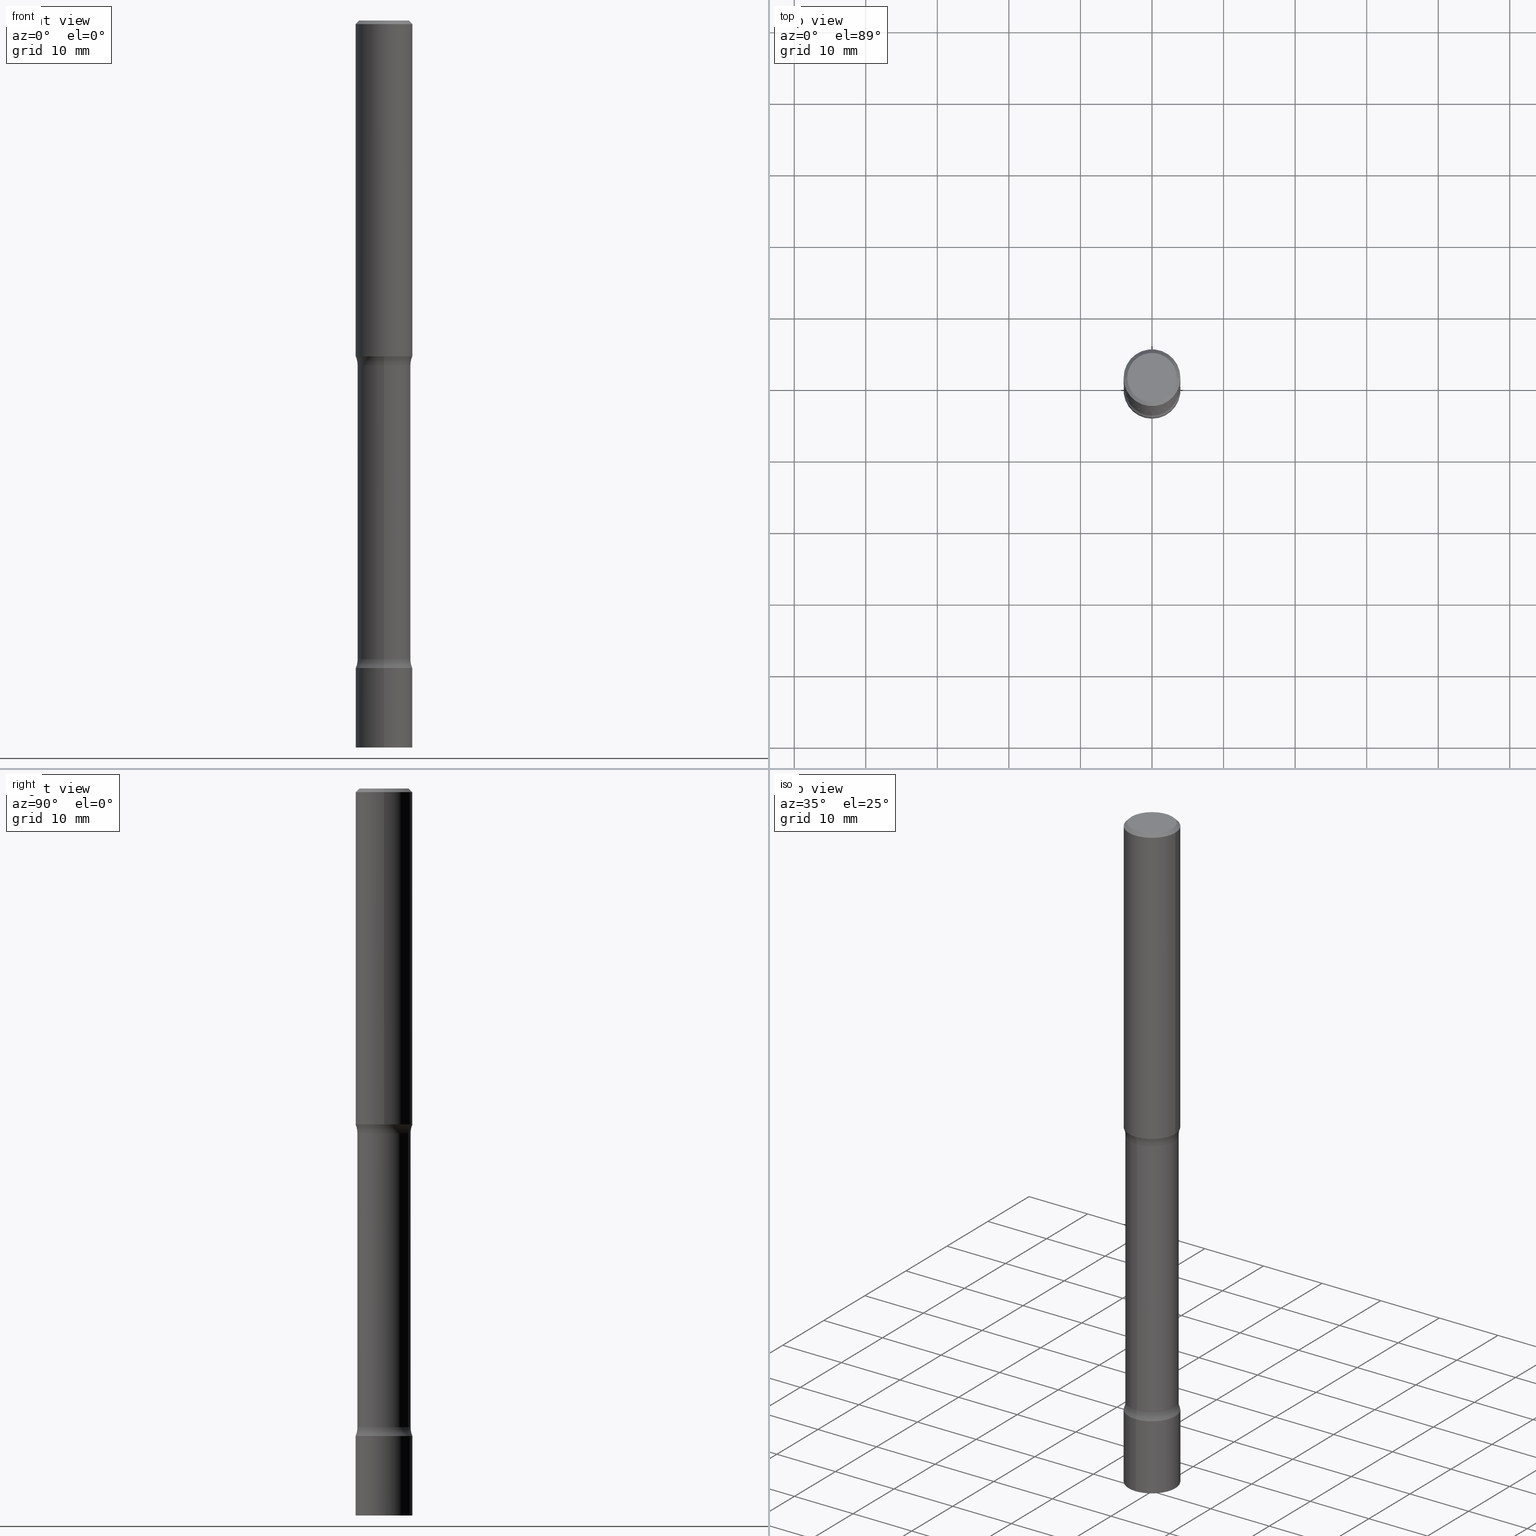
[diagram: canonical four-view strip — front | top / right | iso, engineering-drawing reading convention]
A machine part, canonical four-view strip (front | top / right | iso — engineering-drawing reading convention). The complete STEP part file that produces these views, byte-faithful:
ISO-10303-21;
HEADER;
FILE_DESCRIPTION (( 'STEP AP203' ),
    '1' );
FILE_NAME ('32706.STEP',
    '2024-03-11T13:16:32',
    ( '' ),
    ( '' ),
    'SwSTEP 2.0',
    'SolidWorks 2023',
    '' );
FILE_SCHEMA (( 'CONFIG_CONTROL_DESIGN' ));
ENDSEC;

DATA;
#1 = PERSON_AND_ORGANIZATION ( #127, #162 ) ;
#2 = ORIENTED_EDGE ( 'NONE', *, *, #299, .T. ) ;
#3 = DATE_AND_TIME ( #246, #448 ) ;
#4 = EDGE_CURVE ( 'NONE', #105, #86, #270, .T. ) ;
#5 = FACE_OUTER_BOUND ( 'NONE', #451, .T. ) ;
#6 = CIRCLE ( 'NONE', #28, 0.1562500000000000000 ) ;
#7 = CONICAL_SURFACE ( 'NONE', #296, 0.1562499999999997780, 0.7853981633974471688 ) ;
#8 = LOCAL_TIME ( 9, 16, 32.00000000000000000, #273 ) ;
#9 = DIRECTION ( 'NONE',  ( -1.000000000000000000, 6.982962677686265133E-15, 0.000000000000000000 ) ) ;
#10 = DIRECTION ( 'NONE',  ( -2.446290268283031571E-29, 3.490304958364241131E-15, 1.000000000000000000 ) ) ;
#11 = MANIFOLD_SOLID_BREP ( 'Body-Move/Copy2[1]', #95 ) ;
#12 = ORIENTED_EDGE ( 'NONE', *, *, #373, .F. ) ;
#13 = APPLICATION_CONTEXT ( 'configuration controlled 3d designs of mechanical parts and assemblies' ) ;
#14 = PLANE ( 'NONE',  #96 ) ;
#15 = LINE ( 'NONE', #325, #441 ) ;
#16 = VERTEX_POINT ( 'NONE', #382 ) ;
#17 = TOROIDAL_SURFACE ( 'NONE', #161, 0.2712499999999989364, 0.1250000000000000000 ) ;
#18 = CC_DESIGN_APPROVAL ( #484, ( #237 ) ) ;
#19 = MANIFOLD_SOLID_BREP ( 'Body-Move/Copy2[2]', #295 ) ;
#20 = MANIFOLD_SOLID_BREP ( 'Body-Move/Copy2[4]', #428 ) ;
#21 = CC_DESIGN_PERSON_AND_ORGANIZATION_ASSIGNMENT ( #314, #194, ( #237 ) ) ;
#22 = ORIENTED_EDGE ( 'NONE', *, *, #151, .T. ) ;
#23 = DIRECTION ( 'NONE',  ( 2.048022150416317595E-29, -4.060647571162904696E-15, -1.000000000000000000 ) ) ;
#24 = EDGE_LOOP ( 'NONE', ( #101, #134, #417, #12 ) ) ;
#25 =( LENGTH_UNIT ( ) NAMED_UNIT ( * ) SI_UNIT ( $, .METRE. ) );
#26 = ORIENTED_EDGE ( 'NONE', *, *, #395, .F. ) ;
#27 = CARTESIAN_POINT ( 'NONE',  ( 5.203575103869522837E-29, -5.472231153413806580E-15, -1.847999999999999421 ) ) ;
#28 = AXIS2_PLACEMENT_3D ( 'NONE', #143, #458, #231 ) ;
#29 = CC_DESIGN_PERSON_AND_ORGANIZATION_ASSIGNMENT ( #356, #283, ( #36 ) ) ;
#30 = DIRECTION ( 'NONE',  ( 6.982962677686265922E-15, 1.000000000000000000, -3.496765431890251792E-15 ) ) ;
#31 = ORIENTED_EDGE ( 'NONE', *, *, #363, .F. ) ;
#32 = DIRECTION ( 'NONE',  ( -1.000000000000000000, 6.982962677686265922E-15, -4.883557194083112340E-29 ) ) ;
#33 = DIRECTION ( 'NONE',  ( -2.446290268283031571E-29, 3.490304958364241131E-15, 1.000000000000000000 ) ) ;
#34 = CARTESIAN_POINT ( 'NONE',  ( 0.000000000000000000, 0.000000000000000000, 0.000000000000000000 ) ) ;
#35 = CYLINDRICAL_SURFACE ( 'NONE', #429, 0.1562499999999998612 ) ;
#36 = PRODUCT_DEFINITION ( 'UNKNOWN', '', #237, #192 ) ;
#37 = VECTOR ( 'NONE', #167, 39.37007874015748143 ) ;
#38 = APPROVAL_DATE_TIME ( #345, #436 ) ;
#39 = DIRECTION ( 'NONE',  ( -2.445468806185136597E-29, 3.491481338843145583E-15, 1.000000000000000000 ) ) ;
#40 = CARTESIAN_POINT ( 'NONE',  ( 1.091087918388568118E-15, 0.1562499999999878431, -3.562500000000000444 ) ) ;
#41 = CARTESIAN_POINT ( 'NONE',  ( 9.781875224740546387E-29, -1.396592535537258233E-14, -4.000000000000000000 ) ) ;
#42 = APPROVAL_DATE_TIME ( #207, #484 ) ;
#43 = ADVANCED_FACE ( 'NONE', ( #5 ), #459, .F. ) ;
#44 = FACE_OUTER_BOUND ( 'NONE', #198, .T. ) ;
#45 = AXIS2_PLACEMENT_3D ( 'NONE', #41, #432, #337 ) ;
#46 = AXIS2_PLACEMENT_3D ( 'NONE', #201, #164, #9 ) ;
#47 = DIRECTION ( 'NONE',  ( 1.000000000000000000, -6.982962677686266711E-15, 4.876176775795936353E-29 ) ) ;
#48 = ORIENTED_EDGE ( 'NONE', *, *, #474, .T. ) ;
#49 = DIRECTION ( 'NONE',  ( 1.000000000000000000, -6.982962677686266711E-15, 4.876388394912427736E-29 ) ) ;
#50 = DIRECTION ( 'NONE',  ( 2.048022150416317595E-29, -4.060647571162904696E-15, -1.000000000000000000 ) ) ;
#51 = COORDINATED_UNIVERSAL_TIME_OFFSET ( 5, 0, .BEHIND. ) ;
#52 = DIRECTION ( 'NONE',  ( 2.048022150416317595E-29, -4.060647571162904696E-15, -1.000000000000000000 ) ) ;
#53 = AXIS2_PLACEMENT_3D ( 'NONE', #54, #50, #58 ) ;
#54 = CARTESIAN_POINT ( 'NONE',  ( 8.614576895749548088E-29, -1.223528112268018578E-14, -3.513510205144335874 ) ) ;
#55 = DIRECTION ( 'NONE',  ( 2.048022150416317595E-29, -4.060647571162904696E-15, -1.000000000000000000 ) ) ;
#56 = DIRECTION ( 'NONE',  ( 1.000000000000000000, -6.982962677686266711E-15, 4.876388394912427736E-29 ) ) ;
#57 = ADVANCED_FACE ( 'NONE', ( #380 ), #279, .T. ) ;
#58 = DIRECTION ( 'NONE',  ( 6.982962677686265922E-15, 1.000000000000000000, -3.735860504156253934E-15 ) ) ;
#59 = VERTEX_POINT ( 'NONE', #158 ) ;
#60 = DIRECTION ( 'NONE',  ( -2.445468806185136597E-29, 3.491481338843145583E-15, 1.000000000000000000 ) ) ;
#61 = ADVANCED_FACE ( 'NONE', ( #44 ), #310, .T. ) ;
#62 = ORIENTED_EDGE ( 'NONE', *, *, #109, .F. ) ;
#63 = AXIS2_PLACEMENT_3D ( 'NONE', #376, #269, #424 ) ;
#64 =( CONVERSION_BASED_UNIT ( 'INCH', #410 ) LENGTH_UNIT ( ) NAMED_UNIT ( #170 ) );
#65 = ORIENTED_EDGE ( 'NONE', *, *, #425, .T. ) ;
#66 = DIRECTION ( 'NONE',  ( 6.982962677686265922E-15, 1.000000000000000000, -3.496765431890280585E-15 ) ) ;
#67 =( NAMED_UNIT ( * ) PLANE_ANGLE_UNIT ( ) SI_UNIT ( $, .RADIAN. ) );
#68 = VERTEX_POINT ( 'NONE', #394 ) ;
#69 = ADVANCED_FACE ( 'NONE', ( #149 ), #315, .T. ) ;
#70 = CARTESIAN_POINT ( 'NONE',  ( -1.071952812151716412E-15, -0.1562500000000127121, -3.562499999999999556 ) ) ;
#71 = VERTEX_POINT ( 'NONE', #118 ) ;
#72 = AXIS2_PLACEMENT_3D ( 'NONE', #487, #483, #224 ) ;
#73 = DIRECTION ( 'NONE',  ( -2.445468806185136877E-29, 3.491481338843145188E-15, 1.000000000000000000 ) ) ;
#74 = DIRECTION ( 'NONE',  ( 6.982962677686265922E-15, 1.000000000000000000, -4.060647571162904696E-15 ) ) ;
#75 = VERTEX_POINT ( 'NONE', #144 ) ;
#76 = CARTESIAN_POINT ( 'NONE',  ( -0.1362499999999997602, 9.863434782231832402E-16, -1.280553747030800849E-17 ) ) ;
#77 = ORIENTED_EDGE ( 'NONE', *, *, #109, .T. ) ;
#78 = DIRECTION ( 'NONE',  ( -6.982962677686265922E-15, -1.000000000000000000, 3.496765431890251792E-15 ) ) ;
#79 = CARTESIAN_POINT ( 'NONE',  ( 0.000000000000000000, 0.000000000000000000, 0.000000000000000000 ) ) ;
#80 = PERSON_AND_ORGANIZATION ( #127, #162 ) ;
#81 = APPROVAL_STATUS ( 'not_yet_approved' ) ;
#82 = EDGE_CURVE ( 'NONE', #233, #258, #499, .T. ) ;
#83 = COORDINATED_UNIVERSAL_TIME_OFFSET ( 5, 0, .BEHIND. ) ;
#84 = VERTEX_POINT ( 'NONE', #112 ) ;
#85 = CARTESIAN_POINT ( 'NONE',  ( 0.000000000000000000, 0.000000000000000000, 0.000000000000000000 ) ) ;
#86 = VERTEX_POINT ( 'NONE', #320 ) ;
#87 = AXIS2_PLACEMENT_3D ( 'NONE', #107, #33, #496 ) ;
#88 = APPROVAL_ROLE ( '' ) ;
#89 = AXIS2_PLACEMENT_3D ( 'NONE', #338, #173, #374 ) ;
#90 = CALENDAR_DATE ( 2024, 11, 3 ) ;
#91 = ADVANCED_FACE ( 'NONE', ( #440 ), #116, .F. ) ;
#92 = CARTESIAN_POINT ( 'NONE',  ( 0.1562499999999997780, -1.141782438928663330E-15, -0.02000000000000006981 ) ) ;
#93 = CARTESIAN_POINT ( 'NONE',  ( 9.785161073132126286E-29, -1.396121983345696295E-14, -4.000000000000000000 ) ) ;
#94 = DIRECTION ( 'NONE',  ( -2.445468806185136597E-29, 3.491481338843145583E-15, 1.000000000000000000 ) ) ;
#95 = CLOSED_SHELL ( 'NONE', ( #244, #69, #43, #57 ) ) ;
#96 = AXIS2_PLACEMENT_3D ( 'NONE', #214, #133, #322 ) ;
#97 = LINE ( 'NONE', #480, #37 ) ;
#98 =( GEOMETRIC_REPRESENTATION_CONTEXT ( 3 ) GLOBAL_UNCERTAINTY_ASSIGNED_CONTEXT ( ( #390 ) ) GLOBAL_UNIT_ASSIGNED_CONTEXT ( ( #64, #67, #222 ) ) REPRESENTATION_CONTEXT ( 'NONE', 'WORKASPACE' ) );
#99 = DATE_AND_TIME ( #90, #351 ) ;
#100 = PLANE ( 'NONE',  #236 ) ;
#101 = ORIENTED_EDGE ( 'NONE', *, *, #388, .F. ) ;
#102 = DIRECTION ( 'NONE',  ( -6.982962677686265922E-15, -1.000000000000000000, 3.496765431890251792E-15 ) ) ;
#103 = ORIENTED_EDGE ( 'NONE', *, *, #406, .T. ) ;
#104 = ORIENTED_EDGE ( 'NONE', *, *, #498, .F. ) ;
#105 = VERTEX_POINT ( 'NONE', #256 ) ;
#106 = ORIENTED_EDGE ( 'NONE', *, *, #299, .F. ) ;
#107 = CARTESIAN_POINT ( 'NONE',  ( 8.714909080758299536E-29, -1.243421141417260827E-14, -3.562500000000000000 ) ) ;
#108 = EDGE_LOOP ( 'NONE', ( #104, #426, #277, #469 ) ) ;
#109 = EDGE_CURVE ( 'NONE', #16, #445, #385, .T. ) ;
#110 = AXIS2_PLACEMENT_3D ( 'NONE', #247, #60, #49 ) ;
#111 = CARTESIAN_POINT ( 'NONE',  ( 0.1562499999999998612, -1.091087918388478187E-15, 7.619026212181143371E-30 ) ) ;
#112 = CARTESIAN_POINT ( 'NONE',  ( 1.091087918388523547E-15, 0.1562499999999934497, -1.848000000000000087 ) ) ;
#113 = DIRECTION ( 'NONE',  ( 2.048022150416317595E-29, -4.060647571162904696E-15, -1.000000000000000000 ) ) ;
#114 = EDGE_CURVE ( 'NONE', #59, #372, #215, .T. ) ;
#115 = APPROVAL_ROLE ( '' ) ;
#116 = TOROIDAL_SURFACE ( 'NONE', #359, 0.2712499999999999911, 0.1249999999999999584 ) ;
#117 = EDGE_CURVE ( 'NONE', #59, #258, #367, .T. ) ;
#118 = CARTESIAN_POINT ( 'NONE',  ( 0.1362499999999997602, -1.038262645562516547E-15, -1.280553747029427738E-17 ) ) ;
#119 = DIRECTION ( 'NONE',  ( -2.446290268283031571E-29, 3.490304958364241131E-15, 1.000000000000000000 ) ) ;
#120 = DIRECTION ( 'NONE',  ( -6.982962677686265922E-15, -1.000000000000000000, 3.490304958364241131E-15 ) ) ;
#121 = CIRCLE ( 'NONE', #457, 0.1562500000000002220 ) ;
#122 = LOCAL_TIME ( 9, 16, 32.00000000000000000, #189 ) ;
#123 = LINE ( 'NONE', #92, #318 ) ;
#124 = DIRECTION ( 'NONE',  ( 1.000000000000000000, -6.982962677686266711E-15, 0.000000000000000000 ) ) ;
#125 = DIRECTION ( 'NONE',  ( 2.048022150416317595E-29, -4.060647571162904696E-15, -1.000000000000000000 ) ) ;
#126 = CARTESIAN_POINT ( 'NONE',  ( 8.711982622034549126E-29, -1.243840226962870597E-14, -3.562500000000000000 ) ) ;
#127 = PERSON ( 'UNSPECIFIED', 'UNSPECIFIED', 'UNSPECIFIED', ('UNSPECIFIED'), ('UNSPECIFIED'), ('UNSPECIFIED') ) ;
#128 = AXIS2_PLACEMENT_3D ( 'NONE', #286, #439, #401 ) ;
#129 = EDGE_CURVE ( 'NONE', #176, #16, #208, .T. ) ;
#130 = ORIENTED_EDGE ( 'NONE', *, *, #160, .F. ) ;
#131 = ORIENTED_EDGE ( 'NONE', *, *, #388, .T. ) ;
#132 = APPLICATION_CONTEXT ( 'configuration controlled 3d designs of mechanical parts and assemblies' ) ;
#133 = DIRECTION ( 'NONE',  ( -2.438088387897960049E-29, 3.491481338843145188E-15, 1.000000000000000000 ) ) ;
#134 = ORIENTED_EDGE ( 'NONE', *, *, #329, .T. ) ;
#135 = CARTESIAN_POINT ( 'NONE',  ( 8.714909080758299536E-29, -1.243421141417260827E-14, -3.562500000000000000 ) ) ;
#136 = CC_DESIGN_PERSON_AND_ORGANIZATION_ASSIGNMENT ( #396, #400, ( #155 ) ) ;
#137 = EDGE_LOOP ( 'NONE', ( #141, #22 ) ) ;
#138 = CIRCLE ( 'NONE', #110, 0.1362499999999997602 ) ;
#139 = APPROVAL_PERSON_ORGANIZATION ( #276, #484, #191 ) ;
#140 = DIRECTION ( 'NONE',  ( 2.048022150416317595E-29, -4.060647571162904696E-15, -1.000000000000000000 ) ) ;
#141 = ORIENTED_EDGE ( 'NONE', *, *, #398, .T. ) ;
#142 = DIRECTION ( 'NONE',  ( 6.982962677686266711E-15, 1.000000000000000000, -4.060647571162904696E-15 ) ) ;
#143 = CARTESIAN_POINT ( 'NONE',  ( 4.519226353830131610E-29, -6.452257514182131992E-15, -1.847999999999999421 ) ) ;
#144 = CARTESIAN_POINT ( 'NONE',  ( -0.1562500000000000000, -2.150820545854337949E-15, -1.847999999999999421 ) ) ;
#145 = ADVANCED_FACE ( 'NONE', ( #209 ), #203, .T. ) ;
#146 = LINE ( 'NONE', #182, #435 ) ;
#147 = APPROVAL_STATUS ( 'not_yet_approved' ) ;
#148 = APPLICATION_PROTOCOL_DEFINITION ( 'international standard', 'config_control_design', 1994, #132 ) ;
#149 = FACE_OUTER_BOUND ( 'NONE', #24, .T. ) ;
#150 = DIRECTION ( 'NONE',  ( -6.982962677686265922E-15, -1.000000000000000000, 3.490304958364241131E-15 ) ) ;
#151 = EDGE_CURVE ( 'NONE', #71, #176, #138, .T. ) ;
#152 = AXIS2_PLACEMENT_3D ( 'NONE', #27, #113, #66 ) ;
#153 = CC_DESIGN_DATE_AND_TIME_ASSIGNMENT ( #99, #275, ( #155 ) ) ;
#154 = TOROIDAL_SURFACE ( 'NONE', #411, 0.2712499999999989364, 0.1250000000000000000 ) ;
#155 = SECURITY_CLASSIFICATION ( '', '', #354 ) ;
#156 = DIRECTION ( 'NONE',  ( 2.446290268283031011E-29, -3.490304958364241131E-15, -1.000000000000000000 ) ) ;
#157 = ORIENTED_EDGE ( 'NONE', *, *, #129, .F. ) ;
#158 = CARTESIAN_POINT ( 'NONE',  ( -1.037650322162884187E-15, -0.1462500000000046263, -1.896989794855662659 ) ) ;
#159 = PLANE ( 'NONE',  #193 ) ;
#160 = EDGE_CURVE ( 'NONE', #105, #68, #121, .T. ) ;
#161 = AXIS2_PLACEMENT_3D ( 'NONE', #304, #302, #453 ) ;
#162 = ORGANIZATION ( 'UNSPECIFIED', 'UNSPECIFIED', '' ) ;
#163 = CARTESIAN_POINT ( 'NONE',  ( 5.306703109301503151E-29, -5.667157670931942127E-15, -1.896989794855662881 ) ) ;
#164 = DIRECTION ( 'NONE',  ( 2.445468806185136597E-29, -3.491481338843145583E-15, -1.000000000000000000 ) ) ;
#165 = ORIENTED_EDGE ( 'NONE', *, *, #230, .F. ) ;
#166 = AXIS2_PLACEMENT_3D ( 'NONE', #249, #52, #202 ) ;
#167 = DIRECTION ( 'NONE',  ( -2.446290268283031571E-29, 3.490304958364241131E-15, 1.000000000000000000 ) ) ;
#168 = EDGE_LOOP ( 'NONE', ( #26, #366 ) ) ;
#169 = EDGE_CURVE ( 'NONE', #259, #334, #242, .T. ) ;
#170 = DIMENSIONAL_EXPONENTS ( 1.000000000000000000, 0.000000000000000000, 0.000000000000000000, 0.000000000000000000, 0.000000000000000000, 0.000000000000000000, 0.000000000000000000 ) ;
#171 = EDGE_LOOP ( 'NONE', ( #437, #497 ) ) ;
#172 = ADVANCED_FACE ( 'NONE', ( #229 ), #17, .F. ) ;
#173 = DIRECTION ( 'NONE',  ( 2.048022150416317595E-29, -4.060647571162904696E-15, -1.000000000000000000 ) ) ;
#174 = ORIENTED_EDGE ( 'NONE', *, *, #200, .T. ) ;
#175 = ADVANCED_BREP_SHAPE_REPRESENTATION ( '32706', ( #11, #19, #20, #387 ), #98 ) ;
#176 = VERTEX_POINT ( 'NONE', #76 ) ;
#177 = CIRCLE ( 'NONE', #87, 0.1562500000000002220 ) ;
#178 = CC_DESIGN_SECURITY_CLASSIFICATION ( #155, ( #237 ) ) ;
#179 = DIRECTION ( 'NONE',  ( 6.982962677686265922E-15, 1.000000000000000000, -3.735860504156284699E-15 ) ) ;
#180 = FACE_OUTER_BOUND ( 'NONE', #331, .T. ) ;
#181 = EDGE_LOOP ( 'NONE', ( #289, #2, #103, #362 ) ) ;
#182 = CARTESIAN_POINT ( 'NONE',  ( -0.1562499999999998612, 1.110223024625155554E-15, -7.685836078523284153E-30 ) ) ;
#183 = ADVANCED_FACE ( 'NONE', ( #262 ), #35, .T. ) ;
#184 = DIRECTION ( 'NONE',  ( 6.860497997771531562E-15, 1.000000000000000000, 0.000000000000000000 ) ) ;
#185 = DIRECTION ( 'NONE',  ( -2.445468806185136597E-29, 3.491481338843145583E-15, 1.000000000000000000 ) ) ;
#186 = CARTESIAN_POINT ( 'NONE',  ( 4.890937612370289799E-31, -6.982962677686315028E-17, -0.02000000000000006981 ) ) ;
#187 = CIRCLE ( 'NONE', #470, 0.1562500000000002220 ) ;
#188 = ADVANCED_FACE ( 'NONE', ( #339 ), #341, .F. ) ;
#189 = COORDINATED_UNIVERSAL_TIME_OFFSET ( 5, 0, .BEHIND. ) ;
#190 = CARTESIAN_POINT ( 'NONE',  ( 9.610918771565439061E-29, -1.421074472655638094E-14, -4.000000000000000000 ) ) ;
#191 = APPROVAL_ROLE ( '' ) ;
#192 = DESIGN_CONTEXT ( 'detailed design', #13, 'design' ) ;
#193 = AXIS2_PLACEMENT_3D ( 'NONE', #365, #287, #399 ) ;
#194 = PERSON_AND_ORGANIZATION_ROLE ( 'design_supplier' ) ;
#195 = ORIENTED_EDGE ( 'NONE', *, *, #329, .F. ) ;
#196 = EDGE_CURVE ( 'NONE', #75, #420, #6, .T. ) ;
#197 = PERSON_AND_ORGANIZATION ( #127, #162 ) ;
#198 = EDGE_LOOP ( 'NONE', ( #255, #326, #298, #481 ) ) ;
#199 = PERSON_AND_ORGANIZATION ( #127, #162 ) ;
#200 = EDGE_CURVE ( 'NONE', #86, #486, #177, .T. ) ;
#201 = CARTESIAN_POINT ( 'NONE',  ( 4.890937612370289799E-31, -6.982962677686315028E-17, -0.02000000000000006981 ) ) ;
#202 = DIRECTION ( 'NONE',  ( 6.982962677686265922E-15, 1.000000000000000000, -3.735860504156284699E-15 ) ) ;
#203 = CONICAL_SURFACE ( 'NONE', #46, 0.1562499999999997780, 0.7853981633974471688 ) ;
#204 = AXIS2_PLACEMENT_3D ( 'NONE', #383, #456, #179 ) ;
#205 = DIRECTION ( 'NONE',  ( 6.982962677686265922E-15, 1.000000000000000000, -4.060647571162904696E-15 ) ) ;
#206 = CC_DESIGN_DATE_AND_TIME_ASSIGNMENT ( #308, #462, ( #36 ) ) ;
#207 = DATE_AND_TIME ( #243, #430 ) ;
#208 = LINE ( 'NONE', #252, #402 ) ;
#209 = FACE_OUTER_BOUND ( 'NONE', #290, .T. ) ;
#210 = DIRECTION ( 'NONE',  ( 6.860497997771530774E-15, 1.000000000000000000, 0.000000000000000000 ) ) ;
#211 = FACE_OUTER_BOUND ( 'NONE', #181, .T. ) ;
#212 = ORIENTED_EDGE ( 'NONE', *, *, #151, .F. ) ;
#213 = AXIS2_PLACEMENT_3D ( 'NONE', #190, #464, #245 ) ;
#214 = CARTESIAN_POINT ( 'NONE',  ( 4.519226353830131610E-29, -6.452257514182131992E-15, -1.847999999999999421 ) ) ;
#215 = CIRCLE ( 'NONE', #166, 0.1462499999999989364 ) ;
#216 = CARTESIAN_POINT ( 'NONE',  ( 1.021258291611703439E-15, 0.1462499999999878897, -3.513510205144336318 ) ) ;
#217 = AXIS2_PLACEMENT_3D ( 'NONE', #135, #23, #264 ) ;
#218 = ORIENTED_EDGE ( 'NONE', *, *, #285, .T. ) ;
#219 = PRODUCT ( '32706', '32706', '', ( #241 ) ) ;
#220 = ORIENTED_EDGE ( 'NONE', *, *, #117, .T. ) ;
#221 = CARTESIAN_POINT ( 'NONE',  ( 9.785161073132126286E-29, -1.396121983345696295E-14, -4.000000000000000000 ) ) ;
#222 =( NAMED_UNIT ( * ) SI_UNIT ( $, .STERADIAN. ) SOLID_ANGLE_UNIT ( ) );
#223 = ORIENTED_EDGE ( 'NONE', *, *, #455, .T. ) ;
#224 = DIRECTION ( 'NONE',  ( -6.982962677686265922E-15, -1.000000000000000000, 0.000000000000000000 ) ) ;
#225 = DIRECTION ( 'NONE',  ( 1.000000000000000000, -6.982962677686266711E-15, 4.876176775795936353E-29 ) ) ;
#226 = ORIENTED_EDGE ( 'NONE', *, *, #129, .T. ) ;
#227 = AXIS2_PLACEMENT_3D ( 'NONE', #303, #454, #184 ) ;
#228 = CIRCLE ( 'NONE', #89, 0.1462500000000001299 ) ;
#229 = FACE_OUTER_BOUND ( 'NONE', #389, .T. ) ;
#230 = EDGE_CURVE ( 'NONE', #259, #233, #507, .T. ) ;
#231 = DIRECTION ( 'NONE',  ( 1.000000000000000000, -6.982962677686269077E-15, 0.000000000000000000 ) ) ;
#232 = ORIENTED_EDGE ( 'NONE', *, *, #200, .F. ) ;
#233 = VERTEX_POINT ( 'NONE', #70 ) ;
#234 = FACE_OUTER_BOUND ( 'NONE', #312, .T. ) ;
#235 = CC_DESIGN_PERSON_AND_ORGANIZATION_ASSIGNMENT ( #1, #466, ( #237 ) ) ;
#236 = AXIS2_PLACEMENT_3D ( 'NONE', #126, #476, #443 ) ;
#237 = PRODUCT_DEFINITION_FORMATION_WITH_SPECIFIED_SOURCE ( 'ANY', '', #219, .NOT_KNOWN. ) ;
#238 = CALENDAR_DATE ( 2024, 11, 3 ) ;
#239 = APPLICATION_PROTOCOL_DEFINITION ( 'international standard', 'config_control_design', 1994, #13 ) ;
#240 = CARTESIAN_POINT ( 'NONE',  ( 8.711982622034549126E-29, -1.243840226962870597E-14, -3.562500000000000000 ) ) ;
#241 = MECHANICAL_CONTEXT ( 'NONE', #132, 'mechanical' ) ;
#242 = CIRCLE ( 'NONE', #72, 0.1249999999999999584 ) ;
#243 = CALENDAR_DATE ( 2024, 11, 3 ) ;
#244 = ADVANCED_FACE ( 'NONE', ( #180 ), #336, .T. ) ;
#245 = DIRECTION ( 'NONE',  ( 6.982962677686266711E-15, 1.000000000000000000, -3.735860504156269711E-15 ) ) ;
#246 = CALENDAR_DATE ( 2024, 11, 3 ) ;
#247 = CARTESIAN_POINT ( 'NONE',  ( 3.131554243005659264E-46, -4.471029511141341874E-32, -1.280553747030123384E-17 ) ) ;
#248 = FACE_OUTER_BOUND ( 'NONE', #375, .T. ) ;
#249 = CARTESIAN_POINT ( 'NONE',  ( 5.303907288878273163E-29, -5.671161444906225909E-15, -1.896989794855663325 ) ) ;
#250 = CIRCLE ( 'NONE', #53, 0.1462500000000001299 ) ;
#251 = CARTESIAN_POINT ( 'NONE',  ( 3.131554243005659264E-46, -4.471029511141341874E-32, -1.280553747030123384E-17 ) ) ;
#252 = CARTESIAN_POINT ( 'NONE',  ( -0.1562499999999997780, 1.021258291611614298E-15, -0.02000000000000006981 ) ) ;
#253 = DIRECTION ( 'NONE',  ( 1.000000000000000000, -6.860497997771530774E-15, 4.833828603578210960E-29 ) ) ;
#254 = DIRECTION ( 'NONE',  ( -2.446290268283031571E-29, 3.490304958364241131E-15, 1.000000000000000000 ) ) ;
#255 = ORIENTED_EDGE ( 'NONE', *, *, #117, .F. ) ;
#256 = CARTESIAN_POINT ( 'NONE',  ( -1.091087918388382538E-15, -0.1562500000000141831, -3.999999999999999556 ) ) ;
#257 = CARTESIAN_POINT ( 'NONE',  ( -1.071952812151742050E-15, -0.1562500000000043854, -1.847999999999998977 ) ) ;
#258 = VERTEX_POINT ( 'NONE', #427 ) ;
#259 = VERTEX_POINT ( 'NONE', #40 ) ;
#260 = ORIENTED_EDGE ( 'NONE', *, *, #363, .T. ) ;
#261 = CARTESIAN_POINT ( 'NONE',  ( 0.1562499999999997780, -1.141782438928663330E-15, -0.02000000000000006981 ) ) ;
#262 = FACE_OUTER_BOUND ( 'NONE', #266, .T. ) ;
#263 = EDGE_LOOP ( 'NONE', ( #444, #165, #506, #260 ) ) ;
#264 = DIRECTION ( 'NONE',  ( 6.982962677686265922E-15, 1.000000000000000000, -3.496765431890251792E-15 ) ) ;
#265 = AXIS2_PLACEMENT_3D ( 'NONE', #240, #156, #391 ) ;
#266 = EDGE_LOOP ( 'NONE', ( #282, #293, #332, #62 ) ) ;
#267 = AXIS2_PLACEMENT_3D ( 'NONE', #251, #405, #56 ) ;
#268 = DIRECTION ( 'NONE',  ( -2.446290268283031571E-29, 3.490304958364241131E-15, 1.000000000000000000 ) ) ;
#269 = DIRECTION ( 'NONE',  ( -2.445468806185136597E-29, 3.491481338843145583E-15, 1.000000000000000000 ) ) ;
#270 = LINE ( 'NONE', #467, #478 ) ;
#271 = ADVANCED_FACE ( 'NONE', ( #234 ), #7, .T. ) ;
#272 = CARTESIAN_POINT ( 'NONE',  ( 0.000000000000000000, 0.000000000000000000, 0.000000000000000000 ) ) ;
#273 = COORDINATED_UNIVERSAL_TIME_OFFSET ( 5, 0, .BEHIND. ) ;
#274 = CARTESIAN_POINT ( 'NONE',  ( 1.894128626322445363E-15, 0.2712499999999932743, -1.896989794855663991 ) ) ;
#275 = DATE_TIME_ROLE ( 'classification_date' ) ;
#276 = PERSON_AND_ORGANIZATION ( #127, #162 ) ;
#277 = ORIENTED_EDGE ( 'NONE', *, *, #493, .T. ) ;
#278 = ADVANCED_FACE ( 'NONE', ( #343 ), #502, .T. ) ;
#279 = PLANE ( 'NONE',  #45 ) ;
#280 = AXIS2_PLACEMENT_3D ( 'NONE', #34, #495, #120 ) ;
#281 = CIRCLE ( 'NONE', #63, 0.1562499999999997780 ) ;
#282 = ORIENTED_EDGE ( 'NONE', *, *, #474, .F. ) ;
#283 = PERSON_AND_ORGANIZATION_ROLE ( 'creator' ) ;
#284 = FACE_OUTER_BOUND ( 'NONE', #137, .T. ) ;
#285 = EDGE_CURVE ( 'NONE', #71, #445, #123, .T. ) ;
#286 = CARTESIAN_POINT ( 'NONE',  ( 4.519226353830131610E-29, -6.452257514182131992E-15, -1.847999999999999421 ) ) ;
#287 = DIRECTION ( 'NONE',  ( 2.438088387897960049E-29, -3.491481338843145188E-15, -1.000000000000000000 ) ) ;
#288 = CIRCLE ( 'NONE', #447, 0.1250000000000000000 ) ;
#289 = ORIENTED_EDGE ( 'NONE', *, *, #114, .F. ) ;
#290 = EDGE_LOOP ( 'NONE', ( #355, #409, #226, #77 ) ) ;
#291 = ADVANCED_FACE ( 'NONE', ( #248 ), #349, .T. ) ;
#292 = DIRECTION ( 'NONE',  ( -0.7071067811865466846, 2.468850131082247989E-15, -0.7071067811865483499 ) ) ;
#293 = ORIENTED_EDGE ( 'NONE', *, *, #196, .T. ) ;
#294 = CARTESIAN_POINT ( 'NONE',  ( 5.203575103869522837E-29, -5.472231153413806580E-15, -1.847999999999999421 ) ) ;
#295 = CLOSED_SHELL ( 'NONE', ( #278, #271, #145, #357, #317, #183 ) ) ;
#296 = AXIS2_PLACEMENT_3D ( 'NONE', #186, #386, #505 ) ;
#297 = CIRCLE ( 'NONE', #204, 0.1462499999999989364 ) ;
#298 = ORIENTED_EDGE ( 'NONE', *, *, #384, .T. ) ;
#299 = EDGE_CURVE ( 'NONE', #59, #330, #288, .T. ) ;
#300 = DIRECTION ( 'NONE',  ( 6.982962677686266711E-15, 1.000000000000000000, -3.735860504156269711E-15 ) ) ;
#301 = ORIENTED_EDGE ( 'NONE', *, *, #384, .F. ) ;
#302 = DIRECTION ( 'NONE',  ( 2.048022150416317595E-29, -4.060647571162904696E-15, -1.000000000000000000 ) ) ;
#303 = CARTESIAN_POINT ( 'NONE',  ( -1.860910081895441540E-15, -0.2712500000000122036, -3.513510205144334542 ) ) ;
#304 = CARTESIAN_POINT ( 'NONE',  ( 5.306703109301503151E-29, -5.667157670931942127E-15, -1.896989794855662881 ) ) ;
#305 = ORIENTED_EDGE ( 'NONE', *, *, #160, .T. ) ;
#306 = CC_DESIGN_APPROVAL ( #436, ( #155 ) ) ;
#307 = DIRECTION ( 'NONE',  ( -2.446290268283031571E-29, 3.490304958364241131E-15, 1.000000000000000000 ) ) ;
#308 = DATE_AND_TIME ( #438, #122 ) ;
#309 = AXIS2_PLACEMENT_3D ( 'NONE', #79, #268, #150 ) ;
#310 = CYLINDRICAL_SURFACE ( 'NONE', #213, 0.1462499999999995193 ) ;
#311 = APPROVAL ( #433, 'UNSPECIFIED' ) ;
#312 = EDGE_LOOP ( 'NONE', ( #212, #218, #223, #157 ) ) ;
#313 = PERSON_AND_ORGANIZATION_ROLE ( 'design_owner' ) ;
#314 = PERSON_AND_ORGANIZATION ( #127, #162 ) ;
#315 = CYLINDRICAL_SURFACE ( 'NONE', #280, 0.1562500000000002220 ) ;
#316 = CARTESIAN_POINT ( 'NONE',  ( 1.021258291611662024E-15, 0.1462499999999932743, -1.896989794855663769 ) ) ;
#317 = ADVANCED_FACE ( 'NONE', ( #364 ), #14, .F. ) ;
#318 = VECTOR ( 'NONE', #358, 39.37007874015748143 ) ;
#319 = AXIS2_PLACEMENT_3D ( 'NONE', #452, #140, #142 ) ;
#320 = CARTESIAN_POINT ( 'NONE',  ( -1.091087918388393385E-15, -0.1562500000000126288, -3.562499999999999556 ) ) ;
#321 = DIRECTION ( 'NONE',  ( 2.048022150416317595E-29, -4.060647571162904696E-15, -1.000000000000000000 ) ) ;
#322 = DIRECTION ( 'NONE',  ( 1.000000000000000000, -6.982962677686265922E-15, 4.876176775795935793E-29 ) ) ;
#323 = ADVANCED_FACE ( 'NONE', ( #475 ), #100, .F. ) ;
#324 = CARTESIAN_POINT ( 'NONE',  ( -1.860910081895467178E-15, -0.2712500000000045985, -1.896989794855661993 ) ) ;
#325 = CARTESIAN_POINT ( 'NONE',  ( 1.021258291611709158E-15, 0.1462499999999853362, -4.000000000000000888 ) ) ;
#326 = ORIENTED_EDGE ( 'NONE', *, *, #114, .T. ) ;
#327 = CARTESIAN_POINT ( 'NONE',  ( 8.616025097619700300E-29, -1.223320721517559684E-14, -3.513510205144335874 ) ) ;
#328 = CIRCLE ( 'NONE', #461, 0.1562500000000002220 ) ;
#329 = EDGE_CURVE ( 'NONE', #68, #105, #328, .T. ) ;
#330 = VERTEX_POINT ( 'NONE', #257 ) ;
#331 = EDGE_LOOP ( 'NONE', ( #305, #131, #232, #407 ) ) ;
#332 = ORIENTED_EDGE ( 'NONE', *, *, #503, .T. ) ;
#333 = AXIS2_PLACEMENT_3D ( 'NONE', #419, #378, #30 ) ;
#334 = VERTEX_POINT ( 'NONE', #216 ) ;
#335 = DIRECTION ( 'NONE',  ( -2.445468806185136877E-29, 3.491481338843145188E-15, 1.000000000000000000 ) ) ;
#336 = CYLINDRICAL_SURFACE ( 'NONE', #309, 0.1562500000000002220 ) ;
#337 = DIRECTION ( 'NONE',  ( 6.982962677686265922E-15, 1.000000000000000000, -3.490304958364241131E-15 ) ) ;
#338 = CARTESIAN_POINT ( 'NONE',  ( 8.614576895749548088E-29, -1.223528112268018578E-14, -3.513510205144335874 ) ) ;
#339 = FACE_OUTER_BOUND ( 'NONE', #171, .T. ) ;
#340 = ORIENTED_EDGE ( 'NONE', *, *, #503, .F. ) ;
#341 = PLANE ( 'NONE',  #377 ) ;
#342 = AXIS2_PLACEMENT_3D ( 'NONE', #414, #490, #300 ) ;
#343 = FACE_OUTER_BOUND ( 'NONE', #477, .T. ) ;
#344 = PRODUCT_RELATED_PRODUCT_CATEGORY ( 'detail', '', ( #219 ) ) ;
#345 = DATE_AND_TIME ( #238, #8 ) ;
#346 = CARTESIAN_POINT ( 'NONE',  ( 0.1562500000000000000, -7.543345432570611166E-15, -1.847999999999999421 ) ) ;
#347 = ORIENTED_EDGE ( 'NONE', *, *, #498, .T. ) ;
#348 = APPROVAL_DATE_TIME ( #3, #311 ) ;
#349 = CYLINDRICAL_SURFACE ( 'NONE', #342, 0.1462499999999995193 ) ;
#350 = CIRCLE ( 'NONE', #128, 0.1562500000000000000 ) ;
#351 = LOCAL_TIME ( 9, 16, 32.00000000000000000, #51 ) ;
#352 = EDGE_LOOP ( 'NONE', ( #431, #347 ) ) ;
#353 = DIRECTION ( 'NONE',  ( 1.000000000000000000, 0.000000000000000000, 0.000000000000000000 ) ) ;
#354 = SECURITY_CLASSIFICATION_LEVEL ( 'unclassified' ) ;
#355 = ORIENTED_EDGE ( 'NONE', *, *, #285, .F. ) ;
#356 = PERSON_AND_ORGANIZATION ( #127, #162 ) ;
#357 = ADVANCED_FACE ( 'NONE', ( #284 ), #159, .F. ) ;
#358 = DIRECTION ( 'NONE',  ( 0.7071067811865466846, -7.319954787623252890E-15, -0.7071067811865483499 ) ) ;
#359 = AXIS2_PLACEMENT_3D ( 'NONE', #327, #472, #397 ) ;
#360 = TOROIDAL_SURFACE ( 'NONE', #319, 0.2712499999999999911, 0.1249999999999999584 ) ;
#361 = CARTESIAN_POINT ( 'NONE',  ( 8.714909080758299536E-29, -1.243421141417260827E-14, -3.562500000000000000 ) ) ;
#362 = ORIENTED_EDGE ( 'NONE', *, *, #425, .F. ) ;
#363 = EDGE_CURVE ( 'NONE', #334, #258, #250, .T. ) ;
#364 = FACE_OUTER_BOUND ( 'NONE', #168, .T. ) ;
#365 = CARTESIAN_POINT ( 'NONE',  ( 9.514286648347519855E-16, 0.1362499999999997602, -4.821171011525283091E-16 ) ) ;
#366 = ORIENTED_EDGE ( 'NONE', *, *, #196, .F. ) ;
#367 = LINE ( 'NONE', #404, #392 ) ;
#368 = CIRCLE ( 'NONE', #152, 0.1562499999999989453 ) ;
#369 = ORIENTED_EDGE ( 'NONE', *, *, #468, .F. ) ;
#370 = ADVANCED_FACE ( 'NONE', ( #211 ), #154, .F. ) ;
#371 = FACE_OUTER_BOUND ( 'NONE', #108, .T. ) ;
#372 = VERTEX_POINT ( 'NONE', #316 ) ;
#373 = EDGE_CURVE ( 'NONE', #486, #86, #187, .T. ) ;
#374 = DIRECTION ( 'NONE',  ( 6.982962677686265922E-15, 1.000000000000000000, -3.735860504156253934E-15 ) ) ;
#375 = EDGE_LOOP ( 'NONE', ( #442, #220, #31, #301 ) ) ;
#376 = CARTESIAN_POINT ( 'NONE',  ( 4.890937612370289799E-31, -6.982962677686315028E-17, -0.02000000000000006981 ) ) ;
#377 = AXIS2_PLACEMENT_3D ( 'NONE', #381, #494, #74 ) ;
#378 = DIRECTION ( 'NONE',  ( 2.048022150416317595E-29, -4.060647571162904696E-15, -1.000000000000000000 ) ) ;
#379 = CIRCLE ( 'NONE', #412, 0.1562499999999989453 ) ;
#380 = FACE_OUTER_BOUND ( 'NONE', #491, .T. ) ;
#381 = CARTESIAN_POINT ( 'NONE',  ( 4.519226353830131610E-29, -6.452257514182131992E-15, -1.847999999999999421 ) ) ;
#382 = CARTESIAN_POINT ( 'NONE',  ( -0.1562499999999997780, 1.021258291611614298E-15, -0.02000000000000006981 ) ) ;
#383 = CARTESIAN_POINT ( 'NONE',  ( 5.303907288878273163E-29, -5.671161444906225909E-15, -1.896989794855663325 ) ) ;
#384 = EDGE_CURVE ( 'NONE', #372, #334, #15, .T. ) ;
#385 = CIRCLE ( 'NONE', #421, 0.1562499999999997780 ) ;
#386 = DIRECTION ( 'NONE',  ( 2.445468806185136597E-29, -3.491481338843145583E-15, -1.000000000000000000 ) ) ;
#387 = AXIS2_PLACEMENT_3D ( 'NONE', #85, #508, #353 ) ;
#388 = EDGE_CURVE ( 'NONE', #68, #486, #97, .T. ) ;
#389 = EDGE_LOOP ( 'NONE', ( #106, #369, #65, #482 ) ) ;
#390 = UNCERTAINTY_MEASURE_WITH_UNIT (LENGTH_MEASURE( 1.000000000000000082E-05 ), #64, 'distance_accuracy_value', 'NONE');
#391 = DIRECTION ( 'NONE',  ( 6.982962677686265922E-15, 1.000000000000000000, -3.490304958364241131E-15 ) ) ;
#392 = VECTOR ( 'NONE', #55, 39.37007874015748143 ) ;
#393 = CIRCLE ( 'NONE', #217, 0.1562500000000002220 ) ;
#394 = CARTESIAN_POINT ( 'NONE',  ( 1.110223024625250218E-15, 0.1562499999999862332, -4.000000000000000888 ) ) ;
#395 = EDGE_CURVE ( 'NONE', #420, #75, #350, .T. ) ;
#396 = PERSON_AND_ORGANIZATION ( #127, #162 ) ;
#397 = DIRECTION ( 'NONE',  ( 6.982962677686266711E-15, 1.000000000000000000, -4.060647571162904696E-15 ) ) ;
#398 = EDGE_CURVE ( 'NONE', #176, #71, #479, .T. ) ;
#399 = DIRECTION ( 'NONE',  ( -1.000000000000000000, 6.982962677686265922E-15, -4.876176775795935793E-29 ) ) ;
#400 = PERSON_AND_ORGANIZATION_ROLE ( 'classification_officer' ) ;
#401 = DIRECTION ( 'NONE',  ( 1.000000000000000000, -6.982962677686269077E-15, 0.000000000000000000 ) ) ;
#402 = VECTOR ( 'NONE', #292, 39.37007874015748143 ) ;
#403 = APPROVAL_PERSON_ORGANIZATION ( #80, #436, #115 ) ;
#404 = CARTESIAN_POINT ( 'NONE',  ( -1.003347832173987079E-15, -0.1462500000000137301, -3.999999999999999556 ) ) ;
#405 = DIRECTION ( 'NONE',  ( -2.445468806185136597E-29, 3.491481338843145583E-15, 1.000000000000000000 ) ) ;
#406 = EDGE_CURVE ( 'NONE', #330, #84, #368, .T. ) ;
#407 = ORIENTED_EDGE ( 'NONE', *, *, #4, .F. ) ;
#408 = CARTESIAN_POINT ( 'NONE',  ( 4.890937612370289799E-31, -6.982962677686315028E-17, -0.02000000000000006981 ) ) ;
#409 = ORIENTED_EDGE ( 'NONE', *, *, #398, .F. ) ;
#410 = LENGTH_MEASURE_WITH_UNIT ( LENGTH_MEASURE( 0.02539999999999999897 ), #25 );
#411 = AXIS2_PLACEMENT_3D ( 'NONE', #163, #321, #205 ) ;
#412 = AXIS2_PLACEMENT_3D ( 'NONE', #294, #492, #418 ) ;
#413 = CC_DESIGN_PERSON_AND_ORGANIZATION_ASSIGNMENT ( #199, #313, ( #219 ) ) ;
#414 = CARTESIAN_POINT ( 'NONE',  ( 9.610918771565439061E-29, -1.421074472655638094E-14, -4.000000000000000000 ) ) ;
#415 = ORIENTED_EDGE ( 'NONE', *, *, #395, .T. ) ;
#416 = LINE ( 'NONE', #111, #489 ) ;
#417 = ORIENTED_EDGE ( 'NONE', *, *, #4, .T. ) ;
#418 = DIRECTION ( 'NONE',  ( 6.982962677686265922E-15, 1.000000000000000000, -3.496765431890280585E-15 ) ) ;
#419 = CARTESIAN_POINT ( 'NONE',  ( 8.714909080758299536E-29, -1.243421141417260827E-14, -3.562500000000000000 ) ) ;
#420 = VERTEX_POINT ( 'NONE', #346 ) ;
#421 = AXIS2_PLACEMENT_3D ( 'NONE', #408, #94, #124 ) ;
#422 = CARTESIAN_POINT ( 'NONE',  ( 0.000000000000000000, 0.000000000000000000, 0.000000000000000000 ) ) ;
#423 = ORIENTED_EDGE ( 'NONE', *, *, #373, .T. ) ;
#424 = DIRECTION ( 'NONE',  ( 1.000000000000000000, -6.982962677686266711E-15, 0.000000000000000000 ) ) ;
#425 = EDGE_CURVE ( 'NONE', #372, #84, #434, .T. ) ;
#426 = ORIENTED_EDGE ( 'NONE', *, *, #82, .T. ) ;
#427 = CARTESIAN_POINT ( 'NONE',  ( -1.037650322162858944E-15, -0.1462500000000123701, -3.513510205144335430 ) ) ;
#428 = CLOSED_SHELL ( 'NONE', ( #291, #465, #370, #172, #188, #323, #91, #61 ) ) ;
#429 = AXIS2_PLACEMENT_3D ( 'NONE', #422, #185, #225 ) ;
#430 = LOCAL_TIME ( 9, 16, 32.00000000000000000, #83 ) ;
#431 = ORIENTED_EDGE ( 'NONE', *, *, #230, .T. ) ;
#432 = DIRECTION ( 'NONE',  ( 2.446290268283031011E-29, -3.490304958364241131E-15, -1.000000000000000000 ) ) ;
#433 = APPROVAL_STATUS ( 'not_yet_approved' ) ;
#434 = CIRCLE ( 'NONE', #500, 0.1250000000000000000 ) ;
#435 = VECTOR ( 'NONE', #335, 39.37007874015748143 ) ;
#436 = APPROVAL ( #147, 'UNSPECIFIED' ) ;
#437 = ORIENTED_EDGE ( 'NONE', *, *, #460, .F. ) ;
#438 = CALENDAR_DATE ( 2024, 11, 3 ) ;
#439 = DIRECTION ( 'NONE',  ( -2.445468806185136597E-29, 3.491481338843145583E-15, 1.000000000000000000 ) ) ;
#440 = FACE_OUTER_BOUND ( 'NONE', #263, .T. ) ;
#441 = VECTOR ( 'NONE', #125, 39.37007874015748143 ) ;
#442 = ORIENTED_EDGE ( 'NONE', *, *, #468, .T. ) ;
#443 = DIRECTION ( 'NONE',  ( -6.982962677686265922E-15, -1.000000000000000000, 4.060647571162904696E-15 ) ) ;
#444 = ORIENTED_EDGE ( 'NONE', *, *, #82, .F. ) ;
#445 = VERTEX_POINT ( 'NONE', #261 ) ;
#446 = DIRECTION ( 'NONE',  ( -6.982962677686265922E-15, -1.000000000000000000, 0.000000000000000000 ) ) ;
#447 = AXIS2_PLACEMENT_3D ( 'NONE', #324, #253, #210 ) ;
#448 = LOCAL_TIME ( 9, 16, 32.00000000000000000, #504 ) ;
#449 = ORIENTED_EDGE ( 'NONE', *, *, #455, .F. ) ;
#450 = CARTESIAN_POINT ( 'NONE',  ( 1.110223024625255542E-15, 0.1562499999999877875, -3.562500000000000444 ) ) ;
#451 = EDGE_LOOP ( 'NONE', ( #174, #423 ) ) ;
#452 = CARTESIAN_POINT ( 'NONE',  ( 8.616025097619700300E-29, -1.223320721517559684E-14, -3.513510205144335874 ) ) ;
#453 = DIRECTION ( 'NONE',  ( 6.982962677686265922E-15, 1.000000000000000000, -4.060647571162904696E-15 ) ) ;
#454 = DIRECTION ( 'NONE',  ( 1.000000000000000000, -6.860497997771530774E-15, 4.833828603578210960E-29 ) ) ;
#455 = EDGE_CURVE ( 'NONE', #445, #16, #281, .T. ) ;
#456 = DIRECTION ( 'NONE',  ( 2.048022150416317595E-29, -4.060647571162904696E-15, -1.000000000000000000 ) ) ;
#457 = AXIS2_PLACEMENT_3D ( 'NONE', #221, #307, #78 ) ;
#458 = DIRECTION ( 'NONE',  ( -2.445468806185136597E-29, 3.491481338843145583E-15, 1.000000000000000000 ) ) ;
#459 = PLANE ( 'NONE',  #265 ) ;
#460 = EDGE_CURVE ( 'NONE', #84, #330, #379, .T. ) ;
#461 = AXIS2_PLACEMENT_3D ( 'NONE', #93, #254, #102 ) ;
#462 = DATE_TIME_ROLE ( 'creation_date' ) ;
#463 = SHAPE_DEFINITION_REPRESENTATION ( #485, #175 ) ;
#464 = DIRECTION ( 'NONE',  ( 2.048022150416317595E-29, -4.060647571162904696E-15, -1.000000000000000000 ) ) ;
#465 = ADVANCED_FACE ( 'NONE', ( #371 ), #360, .F. ) ;
#466 = PERSON_AND_ORGANIZATION_ROLE ( 'creator' ) ;
#467 = CARTESIAN_POINT ( 'NONE',  ( -1.091087918388480554E-15, -0.1562500000000002220, 5.453601497444134286E-16 ) ) ;
#468 = EDGE_CURVE ( 'NONE', #372, #59, #297, .T. ) ;
#469 = ORIENTED_EDGE ( 'NONE', *, *, #169, .F. ) ;
#470 = AXIS2_PLACEMENT_3D ( 'NONE', #361, #10, #473 ) ;
#471 = CC_DESIGN_APPROVAL ( #311, ( #36 ) ) ;
#472 = DIRECTION ( 'NONE',  ( 2.048022150416317595E-29, -4.060647571162904696E-15, -1.000000000000000000 ) ) ;
#473 = DIRECTION ( 'NONE',  ( -6.982962677686265922E-15, -1.000000000000000000, 3.496765431890251792E-15 ) ) ;
#474 = EDGE_CURVE ( 'NONE', #75, #16, #146, .T. ) ;
#475 = FACE_OUTER_BOUND ( 'NONE', #352, .T. ) ;
#476 = DIRECTION ( 'NONE',  ( -2.048022150416317315E-29, 4.060647571162904696E-15, 1.000000000000000000 ) ) ;
#477 = EDGE_LOOP ( 'NONE', ( #415, #48, #449, #340 ) ) ;
#478 = VECTOR ( 'NONE', #119, 39.37007874015748143 ) ;
#479 = CIRCLE ( 'NONE', #267, 0.1362499999999997602 ) ;
#480 = CARTESIAN_POINT ( 'NONE',  ( 1.110223024625157724E-15, 0.1562500000000002220, -5.453601497444134286E-16 ) ) ;
#481 = ORIENTED_EDGE ( 'NONE', *, *, #493, .F. ) ;
#482 = ORIENTED_EDGE ( 'NONE', *, *, #460, .T. ) ;
#483 = DIRECTION ( 'NONE',  ( -1.000000000000000000, 6.982962677686265922E-15, -4.883557194083112340E-29 ) ) ;
#484 = APPROVAL ( #81, 'UNSPECIFIED' ) ;
#485 = PRODUCT_DEFINITION_SHAPE ( 'NONE', 'NONE',  #36 ) ;
#486 = VERTEX_POINT ( 'NONE', #450 ) ;
#487 = CARTESIAN_POINT ( 'NONE',  ( 1.894128626322485594E-15, 0.2712499999999877232, -3.513510205144336762 ) ) ;
#488 = AXIS2_PLACEMENT_3D ( 'NONE', #272, #39, #47 ) ;
#489 = VECTOR ( 'NONE', #73, 39.37007874015748143 ) ;
#490 = DIRECTION ( 'NONE',  ( 2.048022150416317595E-29, -4.060647571162904696E-15, -1.000000000000000000 ) ) ;
#491 = EDGE_LOOP ( 'NONE', ( #130, #195 ) ) ;
#492 = DIRECTION ( 'NONE',  ( 2.048022150416317595E-29, -4.060647571162904696E-15, -1.000000000000000000 ) ) ;
#493 = EDGE_CURVE ( 'NONE', #258, #334, #228, .T. ) ;
#494 = DIRECTION ( 'NONE',  ( 2.048022150416317315E-29, -4.060647571162904696E-15, -1.000000000000000000 ) ) ;
#495 = DIRECTION ( 'NONE',  ( -2.446290268283031571E-29, 3.490304958364241131E-15, 1.000000000000000000 ) ) ;
#496 = DIRECTION ( 'NONE',  ( -6.982962677686265922E-15, -1.000000000000000000, 3.496765431890251792E-15 ) ) ;
#497 = ORIENTED_EDGE ( 'NONE', *, *, #406, .F. ) ;
#498 = EDGE_CURVE ( 'NONE', #233, #259, #393, .T. ) ;
#499 = CIRCLE ( 'NONE', #227, 0.1249999999999999584 ) ;
#500 = AXIS2_PLACEMENT_3D ( 'NONE', #274, #32, #446 ) ;
#501 = APPROVAL_PERSON_ORGANIZATION ( #197, #311, #88 ) ;
#502 = CYLINDRICAL_SURFACE ( 'NONE', #488, 0.1562499999999998612 ) ;
#503 = EDGE_CURVE ( 'NONE', #420, #445, #416, .T. ) ;
#504 = COORDINATED_UNIVERSAL_TIME_OFFSET ( 5, 0, .BEHIND. ) ;
#505 = DIRECTION ( 'NONE',  ( -1.000000000000000000, 6.982962677686265133E-15, 0.000000000000000000 ) ) ;
#506 = ORIENTED_EDGE ( 'NONE', *, *, #169, .T. ) ;
#507 = CIRCLE ( 'NONE', #333, 0.1562500000000002220 ) ;
#508 = DIRECTION ( 'NONE',  ( 0.000000000000000000, 0.000000000000000000, 1.000000000000000000 ) ) ;
ENDSEC;
END-ISO-10303-21;
